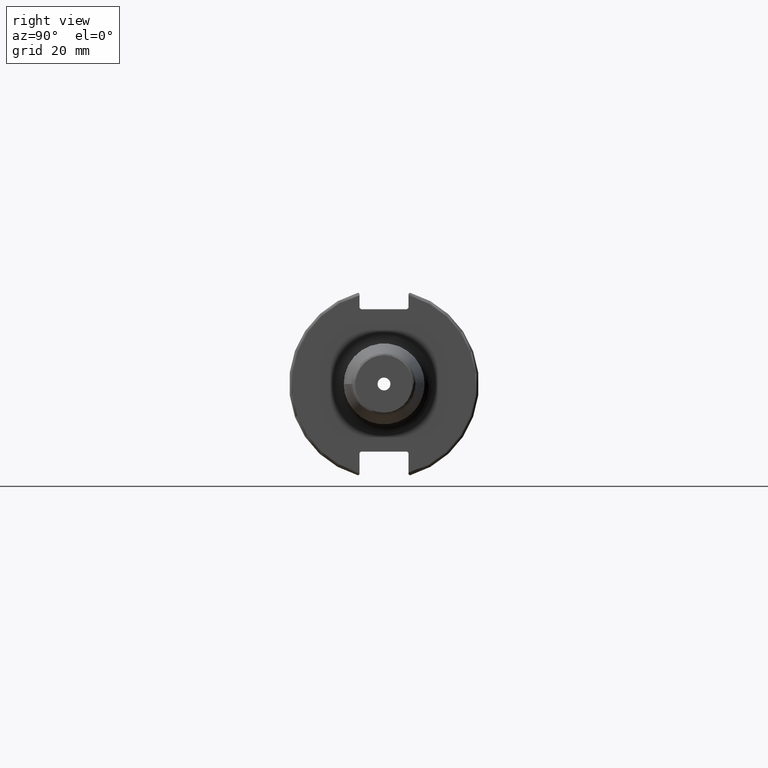
[diagram: clean part render]
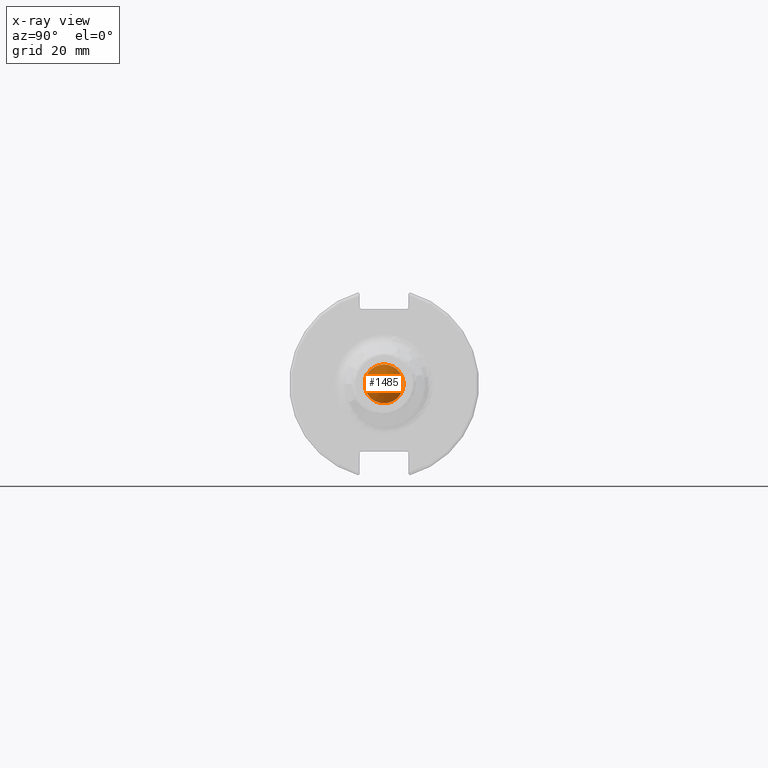
[diagram: x-ray — body ghosted, one internal face saturated and labeled with its STEP entity id]
A machine part, right view, then the same camera in x-ray: the body is ghosted and one INTERNAL B-rep face — a face not visible from any outside direction — is saturated and labeled: STEP entity #1485.
In plain terms, the highlighted conical surface has half-angle 59 deg.
Its self-contained STEP definition (entity closure, byte-faithful):
#174=LINE('',#2280,#268);
#268=VECTOR('',#1829,3.25);
#350=CONICAL_SURFACE('',#1610,3.25,1.02974425867665);
#369=FACE_OUTER_BOUND('',#458,.T.);
#458=EDGE_LOOP('',(#1048,#1049,#1050,#1051,#1052));
#565=CIRCLE('',#1608,2.15);
#566=CIRCLE('',#1609,2.15);
#567=CIRCLE('',#1611,6.5);
#646=VERTEX_POINT('',#2272);
#647=VERTEX_POINT('',#2274);
#648=VERTEX_POINT('',#2278);
#803=EDGE_CURVE('',#647,#646,#565,.T.);
#804=EDGE_CURVE('',#646,#647,#566,.T.);
#805=EDGE_CURVE('',#648,#648,#567,.T.);
#806=EDGE_CURVE('',#648,#647,#174,.T.);
#1048=ORIENTED_EDGE('',*,*,#805,.T.);
#1049=ORIENTED_EDGE('',*,*,#806,.T.);
#1050=ORIENTED_EDGE('',*,*,#803,.T.);
#1051=ORIENTED_EDGE('',*,*,#804,.T.);
#1052=ORIENTED_EDGE('',*,*,#806,.F.);
#1485=ADVANCED_FACE('',(#369),#350,.F.);
#1608=AXIS2_PLACEMENT_3D('',#2275,#1821,#1822);
#1609=AXIS2_PLACEMENT_3D('',#2276,#1823,#1824);
#1610=AXIS2_PLACEMENT_3D('',#2277,#1825,#1826);
#1611=AXIS2_PLACEMENT_3D('',#2279,#1827,#1828);
#1821=DIRECTION('center_axis',(1.,0.,0.));
#1822=DIRECTION('ref_axis',(0.,0.,-1.));
#1823=DIRECTION('center_axis',(1.,0.,0.));
#1824=DIRECTION('ref_axis',(0.,0.,-1.));
#1825=DIRECTION('center_axis',(-1.,0.,0.));
#1826=DIRECTION('ref_axis',(0.,0.,1.));
#1827=DIRECTION('center_axis',(-1.,0.,0.));
#1828=DIRECTION('ref_axis',(0.,0.,1.));
#1829=DIRECTION('',(0.515038074910054,1.04972719113862E-16,0.857167300702112));
#2272=CARTESIAN_POINT('',(108.36374369277,-2.63299061816681E-16,2.15));
#2274=CARTESIAN_POINT('',(108.36374369277,-2.6329906181668E-16,-2.14999999999999));
#2275=CARTESIAN_POINT('Origin',(108.36374369277,0.,0.));
#2276=CARTESIAN_POINT('Origin',(108.36374369277,0.,0.));
#2277=CARTESIAN_POINT('Origin',(107.70279701184,0.,0.));
#2278=CARTESIAN_POINT('',(105.75,-7.96020419445779E-16,-6.5));
#2279=CARTESIAN_POINT('Origin',(105.75,0.,0.));
#2280=CARTESIAN_POINT('',(107.70279701184,-3.9801020972289E-16,-3.25));